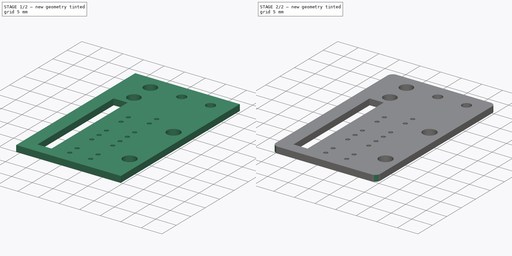
[diagram: build sequence overview — one tinted view per stage of 2, left to right]
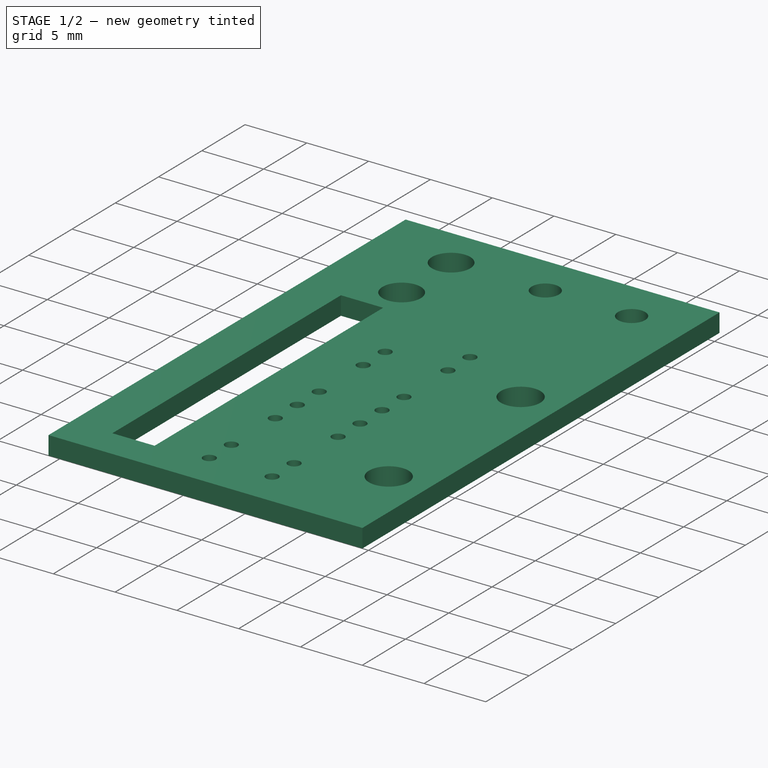
[diagram: stage 1 of 2 — iso view after this stage's code; geometry added in this stage tinted green]
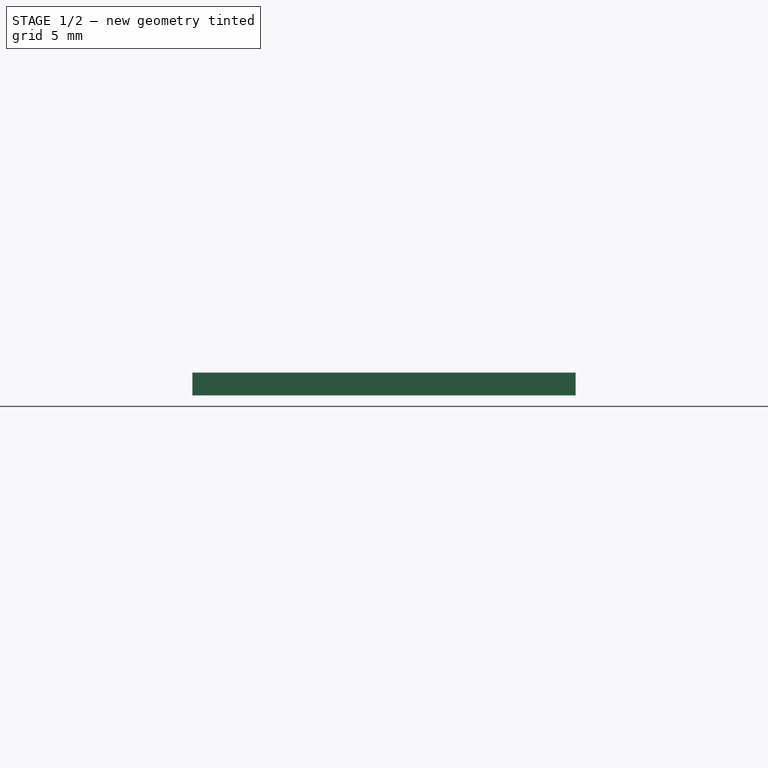
[diagram: stage 1 of 2 — front view after this stage's code; geometry added in this stage tinted green]
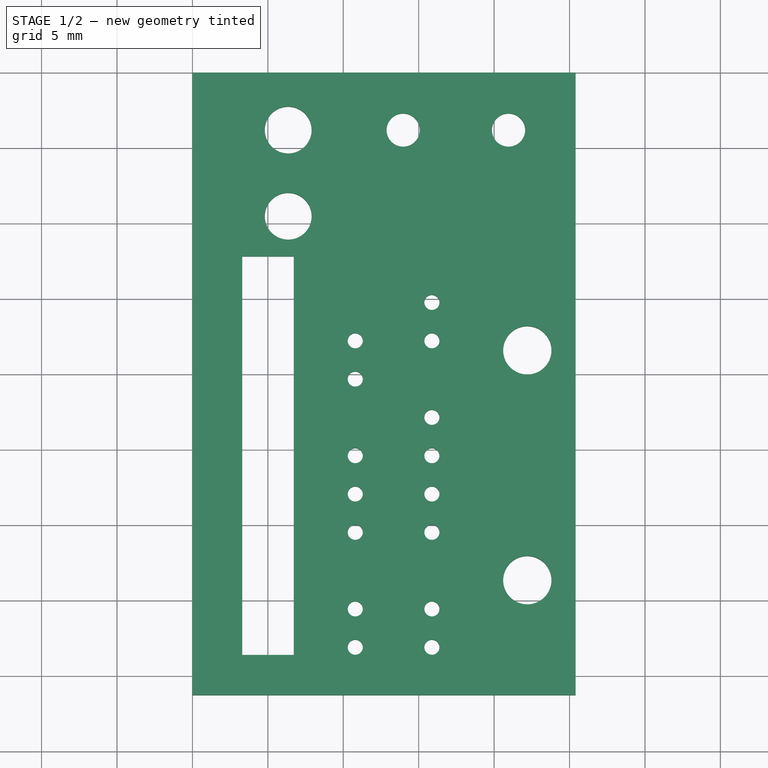
[diagram: stage 1 of 2 — top view after this stage's code; geometry added in this stage tinted green]
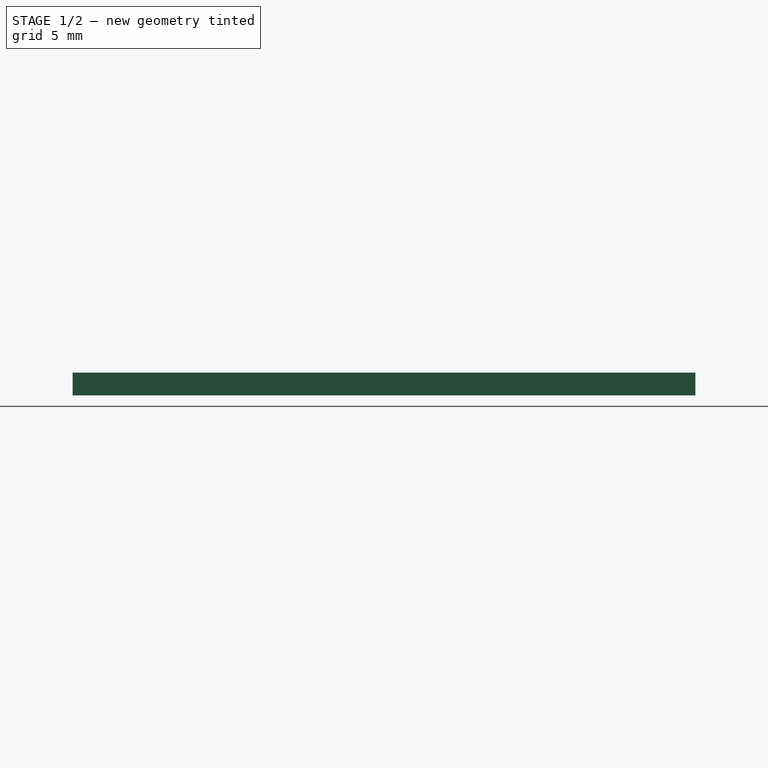
[diagram: stage 1 of 2 — right view after this stage's code; geometry added in this stage tinted green]
FCSTD DOCUMENT  (FreeCAD 0.19R24366 (Git))
Label: mockup
License: All rights reserved
LicenseURL: http://en.wikipedia.org/wiki/All_rights_reserved
objects: Sketcher::SketchObject×1, PartDesign::Pad×1, PartDesign::Fillet×1, PartDesign::Body×1
note: 6 computed .brp shape members not serialized (recipe doc carries the construction recipe); baked Part::Feature solids carry a one-line shape summary decoded from their .brp

FEATURE [Sketcher::SketchObject] Sketch
  FullyConstrained = true
  MapMode = 5
  Support = -> [XY_Plane]
  sketch-geometry (29):
    g0: LineSegment StartX=0 StartY=0 StartZ=0 EndX=25.4 EndY=0 EndZ=0
    g1: LineSegment StartX=25.4 StartY=0 StartZ=0 EndX=25.4 EndY=-41.275 EndZ=0
    g2: LineSegment StartX=25.4 StartY=-41.275 StartZ=0 EndX=0 EndY=-41.275 EndZ=0
    g3: LineSegment StartX=0 StartY=-41.275 StartZ=0 EndX=0 EndY=0 EndZ=0
    g4: Circle CenterX=13.97 CenterY=-3.81 CenterZ=0 NormalX=0 NormalY=0 NormalZ=1 AngleXU=0 Radius=1.1
    g5: Circle CenterX=20.955 CenterY=-3.81 CenterZ=0 NormalX=0 NormalY=0 NormalZ=1 AngleXU=0 Radius=1.1
    g6: Circle CenterX=22.2 CenterY=-18.415 CenterZ=0 NormalX=0 NormalY=0 NormalZ=1 AngleXU=0 Radius=1.6
    g7: Circle CenterX=22.2 CenterY=-33.655 CenterZ=0 NormalX=0 NormalY=0 NormalZ=1 AngleXU=0 Radius=1.6
    g8: Circle CenterX=15.875 CenterY=-15.24 CenterZ=0 NormalX=0 NormalY=0 NormalZ=1 AngleXU=0 Radius=0.5
    g9: Circle CenterX=15.875 CenterY=-17.78 CenterZ=0 NormalX=0 NormalY=0 NormalZ=1 AngleXU=0 Radius=0.5
    g10: Circle CenterX=15.875 CenterY=-22.86 CenterZ=0 NormalX=0 NormalY=0 NormalZ=1 AngleXU=0 Radius=0.5
    g11: Circle CenterX=15.875 CenterY=-25.4 CenterZ=0 NormalX=0 NormalY=0 NormalZ=1 AngleXU=0 Radius=0.5
    g12: Circle CenterX=15.875 CenterY=-27.94 CenterZ=0 NormalX=0 NormalY=0 NormalZ=1 AngleXU=0 Radius=0.5
    g13: Circle CenterX=15.875 CenterY=-30.48 CenterZ=0 NormalX=0 NormalY=0 NormalZ=1 AngleXU=0 Radius=0.5
    g14: Circle CenterX=15.875 CenterY=-35.56 CenterZ=0 NormalX=0 NormalY=0 NormalZ=1 AngleXU=0 Radius=0.5
    g15: Circle CenterX=15.875 CenterY=-38.1 CenterZ=0 NormalX=0 NormalY=0 NormalZ=1 AngleXU=0 Radius=0.5
    g16: Circle CenterX=10.795 CenterY=-17.78 CenterZ=0 NormalX=0 NormalY=0 NormalZ=1 AngleXU=0 Radius=0.5
    g17: Circle CenterX=10.795 CenterY=-20.32 CenterZ=0 NormalX=0 NormalY=0 NormalZ=1 AngleXU=0 Radius=0.5
    g18: Circle CenterX=10.795 CenterY=-25.4 CenterZ=0 NormalX=0 NormalY=0 NormalZ=1 AngleXU=0 Radius=0.5
    g19: Circle CenterX=10.795 CenterY=-27.94 CenterZ=0 NormalX=0 NormalY=0 NormalZ=1 AngleXU=0 Radius=0.5
    g20: Circle CenterX=10.795 CenterY=-30.48 CenterZ=0 NormalX=0 NormalY=0 NormalZ=1 AngleXU=0 Radius=0.5
    g21: Circle CenterX=10.795 CenterY=-35.56 CenterZ=0 NormalX=0 NormalY=0 NormalZ=1 AngleXU=0 Radius=0.5
    g22: Circle CenterX=10.795 CenterY=-38.1 CenterZ=0 NormalX=0 NormalY=0 NormalZ=1 AngleXU=0 Radius=0.5
    g23: Circle CenterX=6.35 CenterY=-3.81 CenterZ=0 NormalX=0 NormalY=0 NormalZ=1 AngleXU=0 Radius=1.55
    g24: Circle CenterX=6.35 CenterY=-9.525 CenterZ=0 NormalX=0 NormalY=0 NormalZ=1 AngleXU=0 Radius=1.55
    g25: LineSegment StartX=3.3 StartY=-12.19 StartZ=0 EndX=6.72 EndY=-12.19 EndZ=0
    g26: LineSegment StartX=6.72 StartY=-12.19 StartZ=0 EndX=6.72 EndY=-38.61 EndZ=0
    g27: LineSegment StartX=6.72 StartY=-38.61 StartZ=0 EndX=3.3 EndY=-38.61 EndZ=0
    g28: LineSegment StartX=3.3 StartY=-38.61 StartZ=0 EndX=3.3 EndY=-12.19 EndZ=0
  constraints (86):
    c: Coincident(g0,g1)
    c: Coincident(g1,g2)
    c: Coincident(g2,g3)
    c: Coincident(g3,g0)
    c: Horizontal(g0)
    c: Horizontal(g2)
    c: Vertical(g1)
    c: Vertical(g3)
    c: DistanceY(g1,g0) = 41.275
    c: DistanceX(g0,g0) = 25.4
    c: Coincident(g-1,g0)
    c: Diameter(g6) = 3.2
    c: Diameter(g7) = 3.2
    c: Diameter(g5) = 2.2
    c: Diameter(g4) = 2.2
    c: DistanceX(g5,g0) = 4.445
    c: DistanceX(g4,g5) = 6.985
    c: DistanceY(g5,g0) = 3.81
    c: DistanceY(g4,g5) = 0
    c: DistanceY(g7,g6) = 15.24
    c: DistanceY(g1,g7) = 7.62
    c: DistanceX(g7,g1) = 3.2
    c: DistanceX(g6,g7) = 0
    c: Diameter(g8) = 1
    c: DistanceX(g8,g0) = 9.525
    c: DistanceY(g8,g0) = 15.24
    c: Diameter(g9) = 1
    c: Diameter(g10) = 1
    c: Diameter(g11) = 1
    c: Diameter(g12) = 1
    c: Diameter(g13) = 1
    c: Diameter(g14) = 1
    c: Diameter(g15) = 1
    c: DistanceY(g9,g8) = 2.54
    c: DistanceY(g10,g9) = 5.08
    c: DistanceY(g11,g10) = 2.54
    c: DistanceY(g12,g11) = 2.54
    c: DistanceY(g13,g12) = 2.54
    c: DistanceY(g14,g13) = 5.08
    c: DistanceY(g15,g14) = 2.54
    c: DistanceX(g9,g8) = 0
    c: DistanceX(g10,g9) = 0
    c: DistanceX(g11,g10) = 0
    c: DistanceX(g12,g11) = 0
    c: DistanceX(g13,g12) = 0
    c: DistanceX(g14,g13) = 0
    c: DistanceX(g15,g14) = 0
    c: Diameter(g16) = 1
    c: Diameter(g17) = 1
    c: Diameter(g18) = 1
    c: Diameter(g19) = 1
    c: Diameter(g20) = 1
    c: Diameter(g21) = 1
    c: Diameter(g22) = 1
    c: DistanceX(g16,g8) = 5.08
    c: DistanceX(g17,g16) = 0
    c: DistanceX(g18,g17) = 0
    c: DistanceX(g19,g18) = 0
    c: DistanceX(g20,g19) = 0
    c: DistanceX(g21,g20) = 0
    c: DistanceX(g22,g21) = 0
    c: DistanceY(g22,g15) = 0
    c: DistanceY(g21,g14) = 0
    c: DistanceY(g13,g20) = 0
    c: DistanceY(g12,g19) = 0
    c: DistanceY(g11,g18) = 0
    c: DistanceY(g9,g16) = 0
    c: DistanceY(g17,g16) = 2.54
    c: Diameter(g23) = 3.1
    c: Diameter(g24) = 3.1
    c: DistanceX(g23,g0) = 19.05
    c: DistanceX(g24,g23) = 0
    c: DistanceY(g24,g23) = 5.715
    c: DistanceY(g24,g0) = 9.525
    c: Coincident(g25,g26)
    c: Coincident(g26,g27)
    c: Coincident(g27,g28)
    c: Coincident(g28,g25)
    c: Horizontal(g25)
    c: Horizontal(g27)
    c: Vertical(g26)
    c: Vertical(g28)
    c: DistanceY(g26,g25) = 26.42
    c: DistanceY(g25,g0) = 12.19
    c: DistanceX(g25,g25) = 3.42
    c: DistanceX(g0,g25) = 3.3
FEATURE [PartDesign::Pad] Pad
  Direction = (1,1,1)
  Length = 1.5
  Length2 = 100
  Profile = -> Sketch
  Type = 0
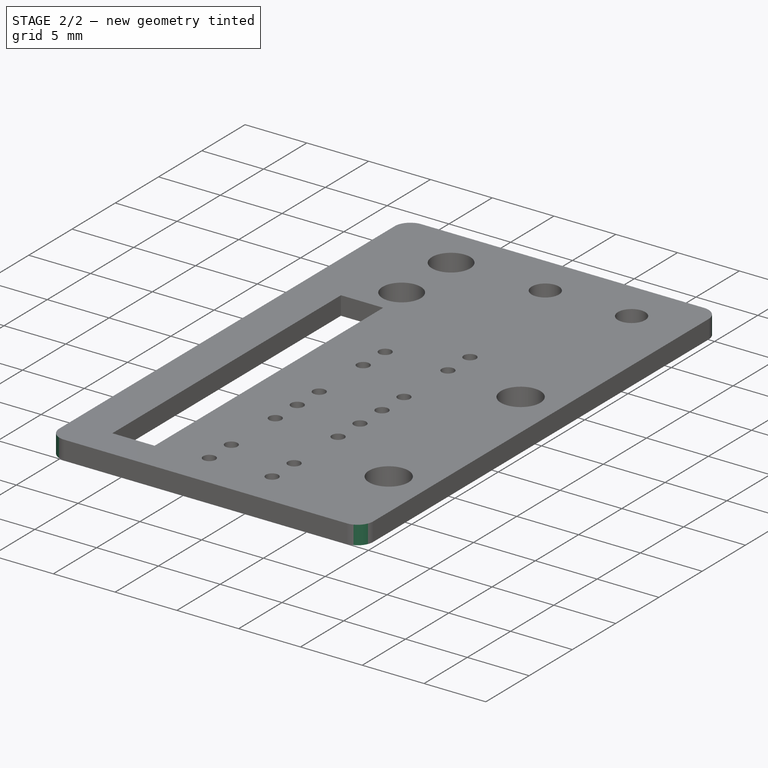
[diagram: stage 2 of 2 — iso view after this stage's code; geometry added in this stage tinted green]
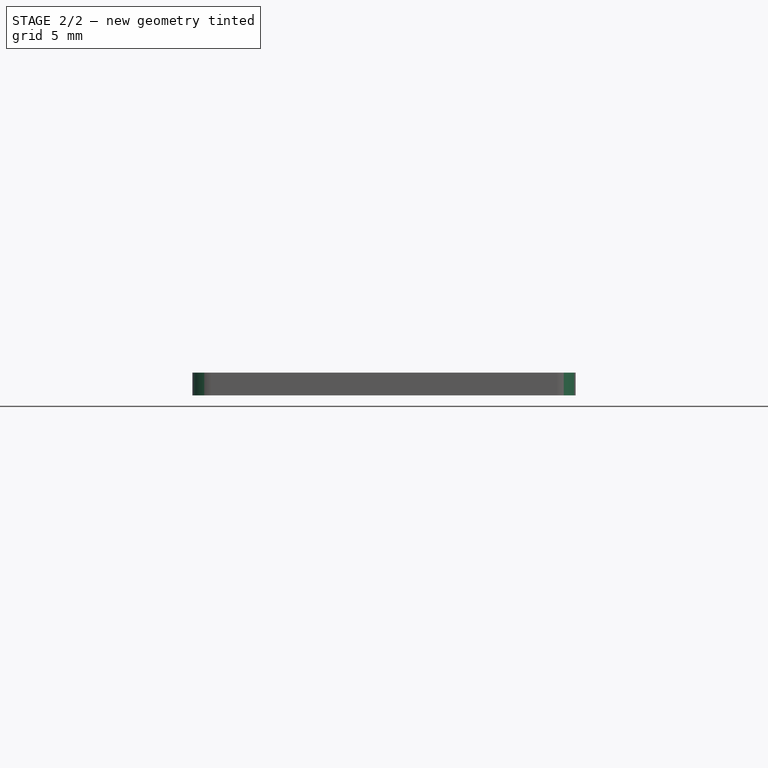
[diagram: stage 2 of 2 — front view after this stage's code; geometry added in this stage tinted green]
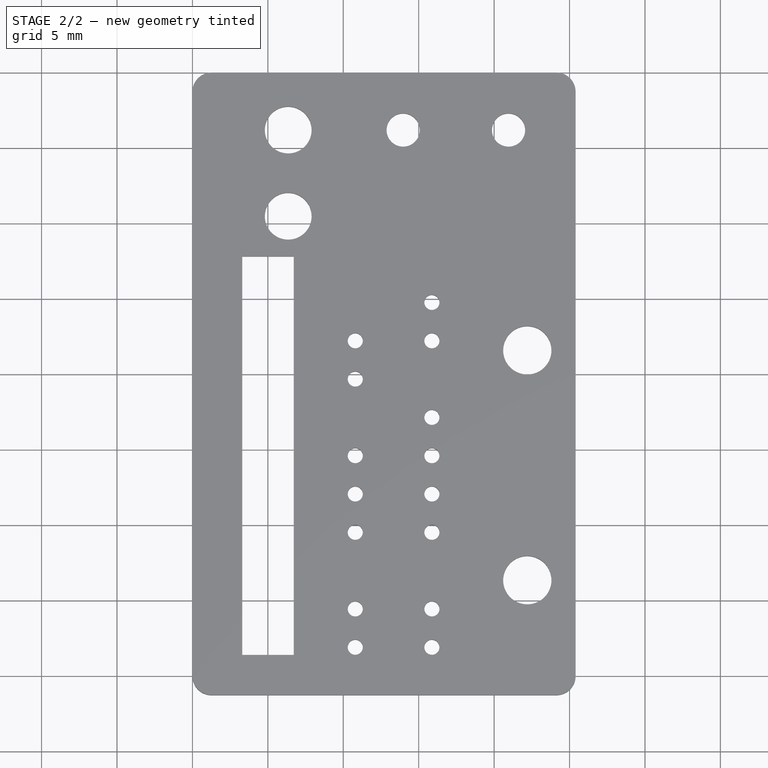
[diagram: stage 2 of 2 — top view after this stage's code; geometry added in this stage tinted green]
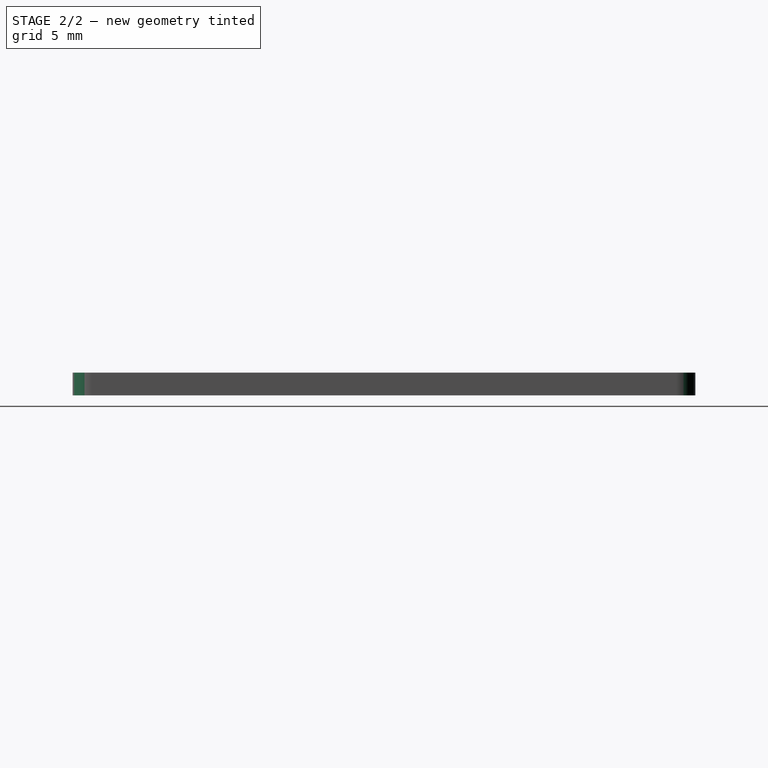
[diagram: stage 2 of 2 — right view after this stage's code; geometry added in this stage tinted green]
FEATURE [PartDesign::Fillet] Fillet
  Base = -> Pad [Edge2,Edge5,Edge8,Edge1]
  BaseFeature = -> Pad
  Radius = 1.27
  SupportTransform = false
FEATURE [PartDesign::Body] Body
  Group = -> [Sketch,Pad,Fillet]
  Origin = -> Origin
  Tip = -> Fillet
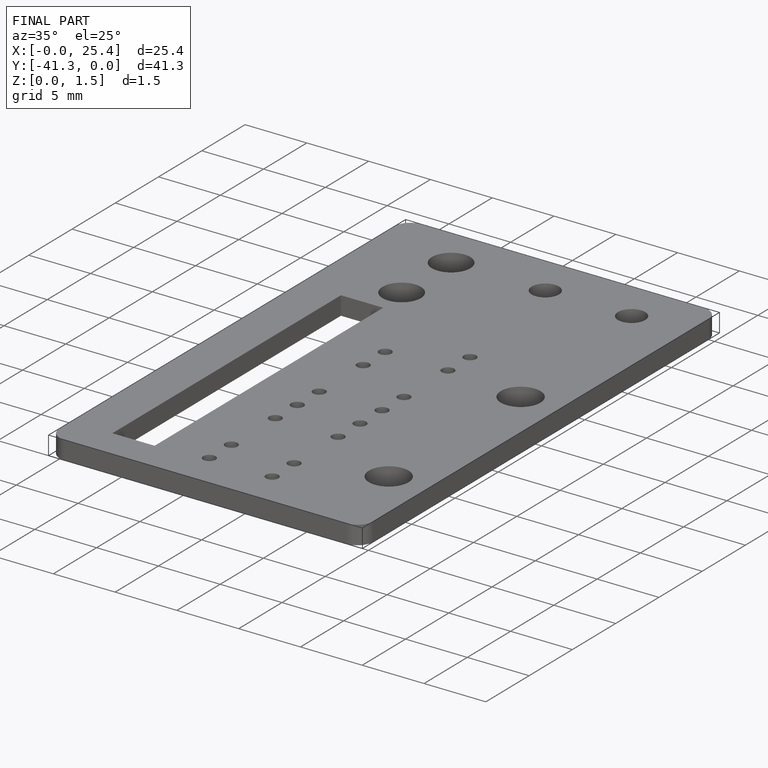
[diagram: finished part — iso view with bounding-box wireframe]
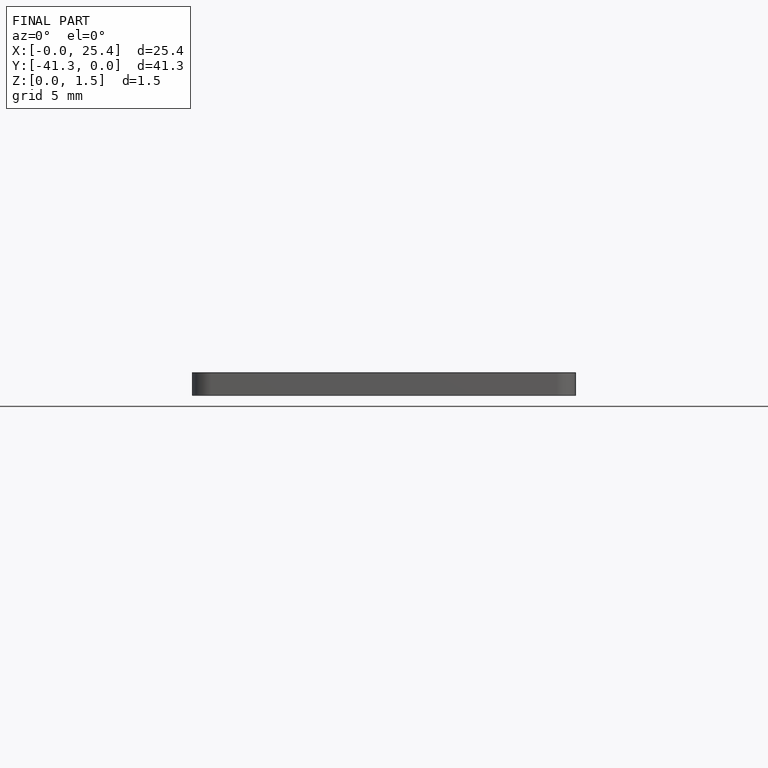
[diagram: finished part — front view with bounding-box wireframe]
